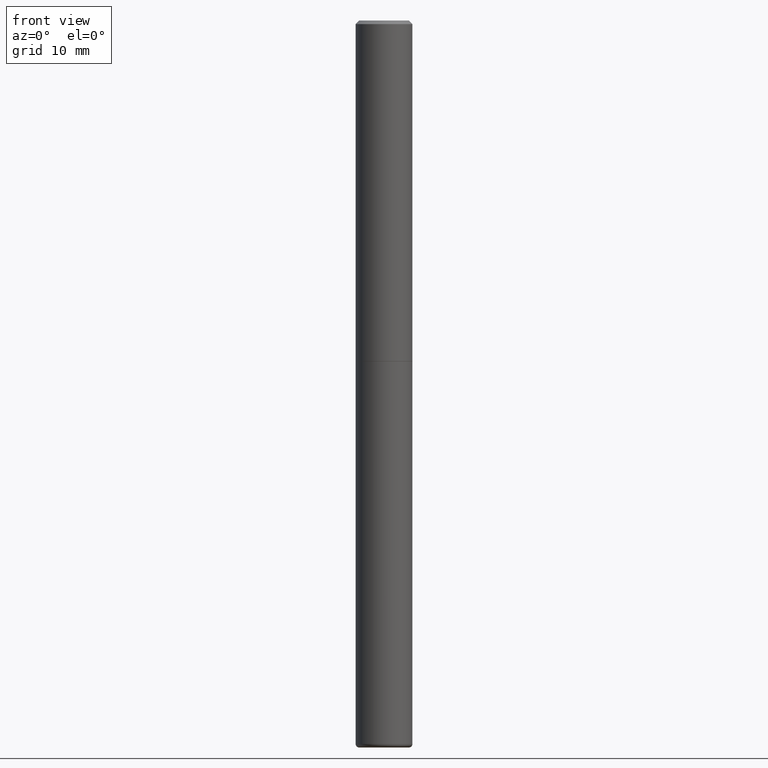
[diagram: clean part render]
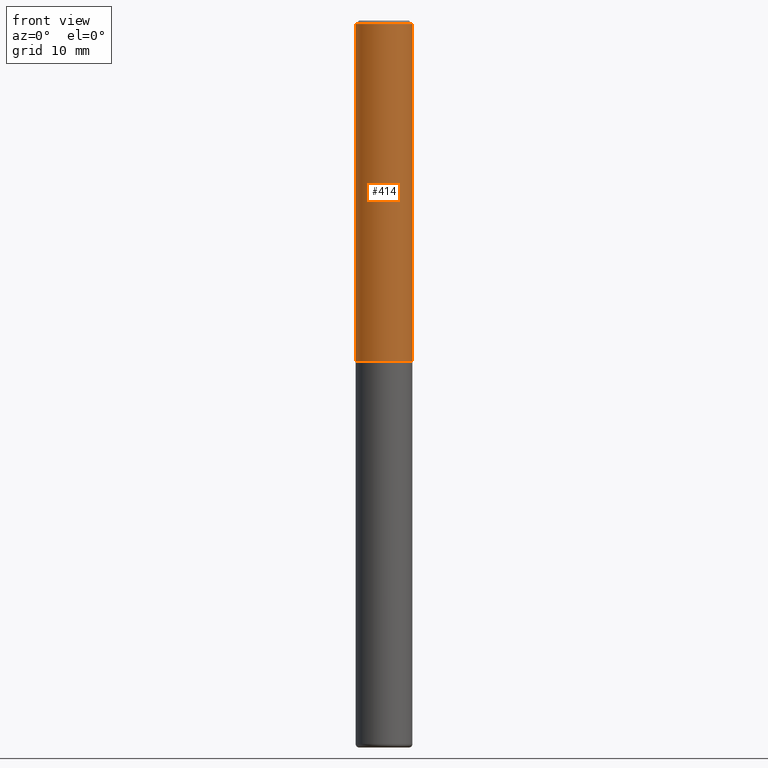
[diagram: same view with one face highlighted and labeled with its STEP entity id]
A machine part, front view. The second image highlights one B-rep face of the part: STEP entity #414.
In plain terms, the highlighted cylindrical surface (edge-blend (fillet) strip) has radius 3.9687 mm, axis along (-0, 0, 1).
Its self-contained STEP definition (entity closure, byte-faithful):
#13 = DIRECTION ( 'NONE',  ( 1.000000000000000000, -6.982962677686269077E-15, 0.000000000000000000 ) ) ;
#28 = CARTESIAN_POINT ( 'NONE',  ( -0.1562500000000000000, -2.196209803259297437E-15, -1.874000000000000332 ) ) ;
#30 = CARTESIAN_POINT ( 'NONE',  ( -0.1562499999999994726, 1.021258291611612128E-15, -0.02000000000000008021 ) ) ;
#42 = DIRECTION ( 'NONE',  ( -2.445468806185136877E-29, 3.491481338843145188E-15, 1.000000000000000000 ) ) ;
#78 = ORIENTED_EDGE ( 'NONE', *, *, #394, .F. ) ;
#84 = EDGE_LOOP ( 'NONE', ( #78, #378, #172, #86 ) ) ;
#86 = ORIENTED_EDGE ( 'NONE', *, *, #156, .F. ) ;
#93 = EDGE_CURVE ( 'NONE', #234, #247, #279, .T. ) ;
#98 = FACE_OUTER_BOUND ( 'NONE', #84, .T. ) ;
#109 = DIRECTION ( 'NONE',  ( -2.445468806185136597E-29, 3.491481338843145583E-15, 1.000000000000000000 ) ) ;
#126 = CARTESIAN_POINT ( 'NONE',  ( 0.1562499999999994726, -1.141782438928661161E-15, -0.02000000000000008021 ) ) ;
#156 = EDGE_CURVE ( 'NONE', #455, #419, #354, .T. ) ;
#172 = ORIENTED_EDGE ( 'NONE', *, *, #492, .T. ) ;
#174 = DIRECTION ( 'NONE',  ( -2.445468806185136597E-29, 3.491481338843145583E-15, 1.000000000000000000 ) ) ;
#176 = CARTESIAN_POINT ( 'NONE',  ( 0.1562499999999997224, -1.091087918388477399E-15, 7.619026212181136364E-30 ) ) ;
#196 = LINE ( 'NONE', #342, #256 ) ;
#212 = CARTESIAN_POINT ( 'NONE',  ( 4.582808542790946637E-29, -6.543036028992055700E-15, -1.874000000000000332 ) ) ;
#214 = DIRECTION ( 'NONE',  ( -2.445468806185136877E-29, 3.491481338843145188E-15, 1.000000000000000000 ) ) ;
#234 = VERTEX_POINT ( 'NONE', #28 ) ;
#244 = CARTESIAN_POINT ( 'NONE',  ( 0.000000000000000000, 0.000000000000000000, 0.000000000000000000 ) ) ;
#247 = VERTEX_POINT ( 'NONE', #449 ) ;
#256 = VECTOR ( 'NONE', #42, 39.37007874015748143 ) ;
#257 = DIRECTION ( 'NONE',  ( 1.000000000000000000, -6.982962677686265133E-15, 0.000000000000000000 ) ) ;
#279 = CIRCLE ( 'NONE', #363, 0.1562500000000000000 ) ;
#292 = AXIS2_PLACEMENT_3D ( 'NONE', #360, #109, #257 ) ;
#325 = LINE ( 'NONE', #176, #427 ) ;
#342 = CARTESIAN_POINT ( 'NONE',  ( -0.1562499999999997224, 1.110223024625154568E-15, -7.685836078523277147E-30 ) ) ;
#354 = CIRCLE ( 'NONE', #292, 0.1562499999999994726 ) ;
#355 = DIRECTION ( 'NONE',  ( -2.445468806185136597E-29, 3.491481338843145583E-15, 1.000000000000000000 ) ) ;
#358 = CYLINDRICAL_SURFACE ( 'NONE', #364, 0.1562499999999997224 ) ;
#360 = CARTESIAN_POINT ( 'NONE',  ( 4.890937612370293302E-31, -6.982962677686318726E-17, -0.02000000000000008021 ) ) ;
#363 = AXIS2_PLACEMENT_3D ( 'NONE', #212, #355, #13 ) ;
#364 = AXIS2_PLACEMENT_3D ( 'NONE', #244, #174, #475 ) ;
#378 = ORIENTED_EDGE ( 'NONE', *, *, #93, .T. ) ;
#394 = EDGE_CURVE ( 'NONE', #234, #455, #196, .T. ) ;
#414 = ADVANCED_FACE ( 'NONE', ( #98 ), #358, .T. ) ;
#419 = VERTEX_POINT ( 'NONE', #126 ) ;
#427 = VECTOR ( 'NONE', #214, 39.37007874015748143 ) ;
#449 = CARTESIAN_POINT ( 'NONE',  ( 0.1562500000000000000, -7.634123947380535662E-15, -1.874000000000000332 ) ) ;
#455 = VERTEX_POINT ( 'NONE', #30 ) ;
#475 = DIRECTION ( 'NONE',  ( 1.000000000000000000, -6.982962677686267499E-15, 4.876176775795935793E-29 ) ) ;
#492 = EDGE_CURVE ( 'NONE', #247, #419, #325, .T. ) ;